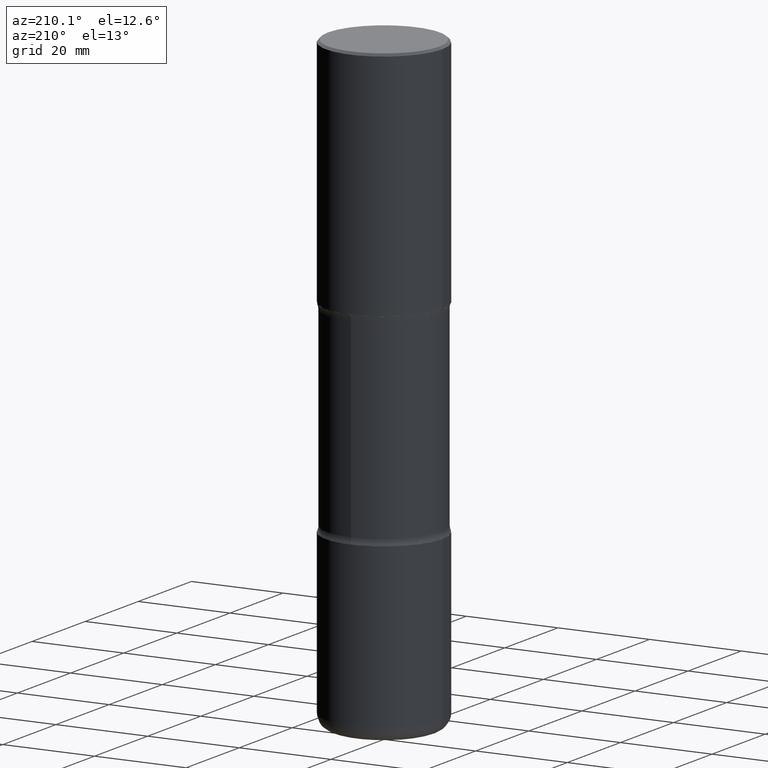
[diagram: clean part render]
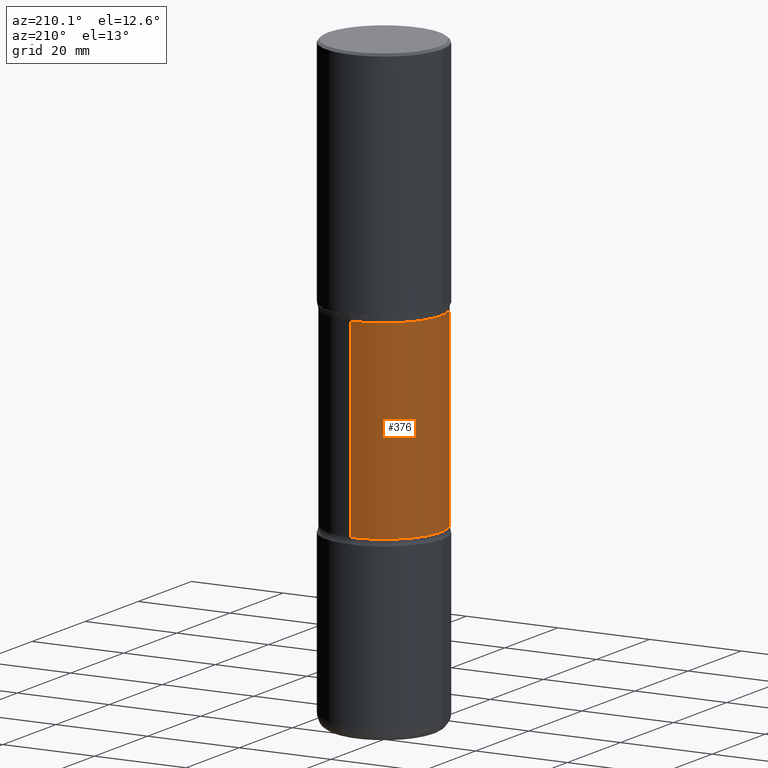
[diagram: same view with one face highlighted and labeled with its STEP entity id]
A machine part, auxiliary view. The second image highlights one B-rep face of the part: STEP entity #376.
In plain terms, the highlighted cylindrical surface (partial cylindrical patch) has radius 12.4206 mm, axis along (0, -0, -1).
Its self-contained STEP definition (entity closure, byte-faithful):
#14 = CYLINDRICAL_SURFACE ( 'NONE', #419, 0.4890000000000000457 ) ;
#18 = LINE ( 'NONE', #63, #503 ) ;
#46 = CARTESIAN_POINT ( 'NONE',  ( 1.288640221392413968E-28, -1.826198082908490324E-14, -5.249999999999999112 ) ) ;
#50 = CIRCLE ( 'NONE', #171, 0.4890000000000001013 ) ;
#51 = DIRECTION ( 'NONE',  ( 2.477262793819919418E-29, -3.445950538948741294E-15, -1.000000000000000000 ) ) ;
#63 = CARTESIAN_POINT ( 'NONE',  ( 3.414668749388713416E-15, 0.4889999999999817826, -5.250000000000000888 ) ) ;
#95 = CARTESIAN_POINT ( 'NONE',  ( 3.414668749388633741E-15, 0.4889999999999927738, -2.051273774973179975 ) ) ;
#98 = DIRECTION ( 'NONE',  ( 6.982962677686265133E-15, 1.000000000000000000, -3.351960728422408359E-15 ) ) ;
#99 = AXIS2_PLACEMENT_3D ( 'NONE', #350, #51, #98 ) ;
#103 = ORIENTED_EDGE ( 'NONE', *, *, #353, .T. ) ;
#134 = CARTESIAN_POINT ( 'NONE',  ( -3.392516259897932872E-15, -0.4890000000000129798, -3.698726225026820469 ) ) ;
#138 = CARTESIAN_POINT ( 'NONE',  ( 9.043489408154512884E-29, -1.291636812815903928E-14, -3.698726225026822245 ) ) ;
#139 = EDGE_CURVE ( 'NONE', #409, #304, #18, .T. ) ;
#147 = VERTEX_POINT ( 'NONE', #480 ) ;
#169 = CARTESIAN_POINT ( 'NONE',  ( 3.414668749388675156E-15, 0.4889999999999871672, -3.698726225026823577 ) ) ;
#171 = AXIS2_PLACEMENT_3D ( 'NONE', #138, #483, #440 ) ;
#205 = ORIENTED_EDGE ( 'NONE', *, *, #240, .F. ) ;
#211 = LINE ( 'NONE', #515, #545 ) ;
#221 = ORIENTED_EDGE ( 'NONE', *, *, #139, .T. ) ;
#240 = EDGE_CURVE ( 'NONE', #147, #321, #211, .T. ) ;
#246 = DIRECTION ( 'NONE',  ( 2.477262793819919418E-29, -3.445950538948741294E-15, -1.000000000000000000 ) ) ;
#254 = FACE_OUTER_BOUND ( 'NONE', #559, .T. ) ;
#304 = VERTEX_POINT ( 'NONE', #169 ) ;
#321 = VERTEX_POINT ( 'NONE', #134 ) ;
#350 = CARTESIAN_POINT ( 'NONE',  ( 4.962316749049152891E-29, -7.239328470004260161E-15, -2.051273774973178643 ) ) ;
#353 = EDGE_CURVE ( 'NONE', #147, #409, #519, .T. ) ;
#376 = ADVANCED_FACE ( 'NONE', ( #254 ), #14, .T. ) ;
#393 = EDGE_CURVE ( 'NONE', #321, #304, #50, .T. ) ;
#409 = VERTEX_POINT ( 'NONE', #95 ) ;
#419 = AXIS2_PLACEMENT_3D ( 'NONE', #46, #526, #485 ) ;
#440 = DIRECTION ( 'NONE',  ( 6.982962677686265922E-15, 1.000000000000000000, -3.351960728422408359E-15 ) ) ;
#447 = ORIENTED_EDGE ( 'NONE', *, *, #393, .F. ) ;
#456 = DIRECTION ( 'NONE',  ( 2.477262793819919418E-29, -3.445950538948741294E-15, -1.000000000000000000 ) ) ;
#480 = CARTESIAN_POINT ( 'NONE',  ( -3.392516259897975076E-15, -0.4890000000000072622, -2.051273774973176867 ) ) ;
#483 = DIRECTION ( 'NONE',  ( 2.477262793819919418E-29, -3.445950538948741294E-15, -1.000000000000000000 ) ) ;
#485 = DIRECTION ( 'NONE',  ( 6.982962677686265133E-15, 1.000000000000000000, -4.469280971229878074E-15 ) ) ;
#503 = VECTOR ( 'NONE', #456, 39.37007874015748143 ) ;
#515 = CARTESIAN_POINT ( 'NONE',  ( -3.354783520910149662E-15, -0.4890000000000182534, -5.249999999999996447 ) ) ;
#519 = CIRCLE ( 'NONE', #99, 0.4890000000000000457 ) ;
#526 = DIRECTION ( 'NONE',  ( 2.477262793819919418E-29, -3.445950538948741294E-15, -1.000000000000000000 ) ) ;
#545 = VECTOR ( 'NONE', #246, 39.37007874015748143 ) ;
#559 = EDGE_LOOP ( 'NONE', ( #205, #103, #221, #447 ) ) ;